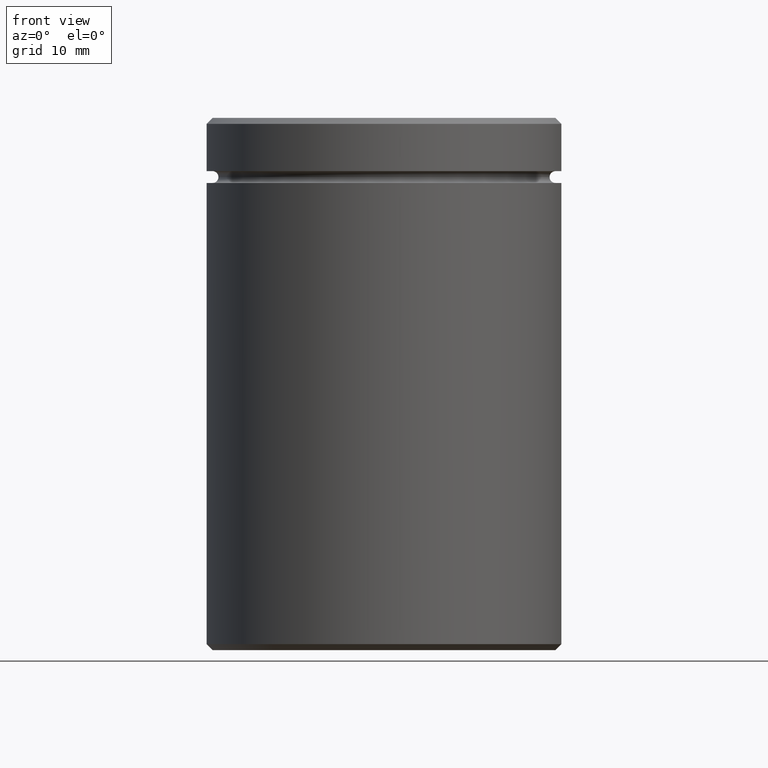
[diagram: clean part render]
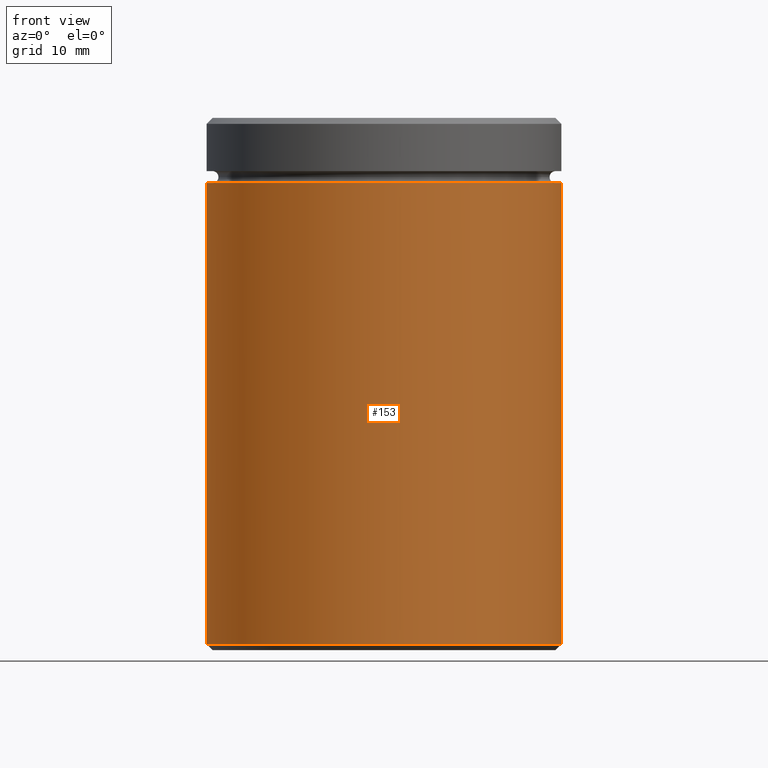
[diagram: same view with one face highlighted and labeled with its STEP entity id]
A machine part, front view. The second image highlights one B-rep face of the part: STEP entity #153.
In plain terms, the highlighted cylindrical surface (partial cylindrical patch) has radius 15 mm, axis along (-0, -0, 1).
Its self-contained STEP definition (entity closure, byte-faithful):
#13 = ORIENTED_EDGE ( 'NONE', *, *, #285, .F. ) ;
#21 = DIRECTION ( 'NONE',  ( -0.000000000000000000, -0.000000000000000000, 1.000000000000000000 ) ) ;
#45 = VECTOR ( 'NONE', #458, 1000.000000000000000 ) ;
#47 = VERTEX_POINT ( 'NONE', #472 ) ;
#93 = AXIS2_PLACEMENT_3D ( 'NONE', #379, #177, #519 ) ;
#100 = LINE ( 'NONE', #106, #45 ) ;
#105 = DIRECTION ( 'NONE',  ( 1.000000000000000000, 0.000000000000000000, 0.000000000000000000 ) ) ;
#106 = CARTESIAN_POINT ( 'NONE',  ( -15.00000000000000000, 1.836970198721029589E-15, 0.000000000000000000 ) ) ;
#108 = VECTOR ( 'NONE', #274, 1000.000000000000000 ) ;
#123 = ORIENTED_EDGE ( 'NONE', *, *, #223, .F. ) ;
#148 = VERTEX_POINT ( 'NONE', #499 ) ;
#149 = FACE_OUTER_BOUND ( 'NONE', #296, .T. ) ;
#153 = ADVANCED_FACE ( 'NONE', ( #149 ), #323, .T. ) ;
#177 = DIRECTION ( 'NONE',  ( -0.000000000000000000, -0.000000000000000000, 1.000000000000000000 ) ) ;
#183 = AXIS2_PLACEMENT_3D ( 'NONE', #193, #363, #537 ) ;
#193 = CARTESIAN_POINT ( 'NONE',  ( 0.000000000000000000, 0.000000000000000000, -5.500000000000000000 ) ) ;
#195 = LINE ( 'NONE', #272, #108 ) ;
#204 = CIRCLE ( 'NONE', #183, 15.00000000000000000 ) ;
#223 = EDGE_CURVE ( 'NONE', #47, #288, #100, .T. ) ;
#229 = EDGE_CURVE ( 'NONE', #523, #148, #195, .T. ) ;
#267 = CARTESIAN_POINT ( 'NONE',  ( 15.00000000000000000, 0.000000000000000000, -44.49999999999998579 ) ) ;
#272 = CARTESIAN_POINT ( 'NONE',  ( 15.00000000000000000, 0.000000000000000000, 0.000000000000000000 ) ) ;
#274 = DIRECTION ( 'NONE',  ( -0.000000000000000000, -0.000000000000000000, 1.000000000000000000 ) ) ;
#285 = EDGE_CURVE ( 'NONE', #288, #148, #204, .T. ) ;
#288 = VERTEX_POINT ( 'NONE', #332 ) ;
#296 = EDGE_LOOP ( 'NONE', ( #123, #478, #422, #13 ) ) ;
#323 = CYLINDRICAL_SURFACE ( 'NONE', #448, 15.00000000000000000 ) ;
#332 = CARTESIAN_POINT ( 'NONE',  ( -15.00000000000000000, 1.836970198721029589E-15, -5.500000000000000000 ) ) ;
#363 = DIRECTION ( 'NONE',  ( -0.000000000000000000, -0.000000000000000000, 1.000000000000000000 ) ) ;
#379 = CARTESIAN_POINT ( 'NONE',  ( 0.000000000000000000, 0.000000000000000000, -44.49999999999998579 ) ) ;
#407 = CARTESIAN_POINT ( 'NONE',  ( 0.000000000000000000, 0.000000000000000000, 0.000000000000000000 ) ) ;
#422 = ORIENTED_EDGE ( 'NONE', *, *, #229, .T. ) ;
#440 = CIRCLE ( 'NONE', #93, 15.00000000000000000 ) ;
#448 = AXIS2_PLACEMENT_3D ( 'NONE', #407, #21, #105 ) ;
#455 = EDGE_CURVE ( 'NONE', #47, #523, #440, .T. ) ;
#458 = DIRECTION ( 'NONE',  ( -0.000000000000000000, -0.000000000000000000, 1.000000000000000000 ) ) ;
#472 = CARTESIAN_POINT ( 'NONE',  ( -15.00000000000000000, 1.836970198721029589E-15, -44.49999999999998579 ) ) ;
#478 = ORIENTED_EDGE ( 'NONE', *, *, #455, .T. ) ;
#499 = CARTESIAN_POINT ( 'NONE',  ( 15.00000000000000000, 0.000000000000000000, -5.500000000000000000 ) ) ;
#519 = DIRECTION ( 'NONE',  ( -1.000000000000000000, 0.000000000000000000, 0.000000000000000000 ) ) ;
#523 = VERTEX_POINT ( 'NONE', #267 ) ;
#537 = DIRECTION ( 'NONE',  ( 1.000000000000000000, 0.000000000000000000, 0.000000000000000000 ) ) ;